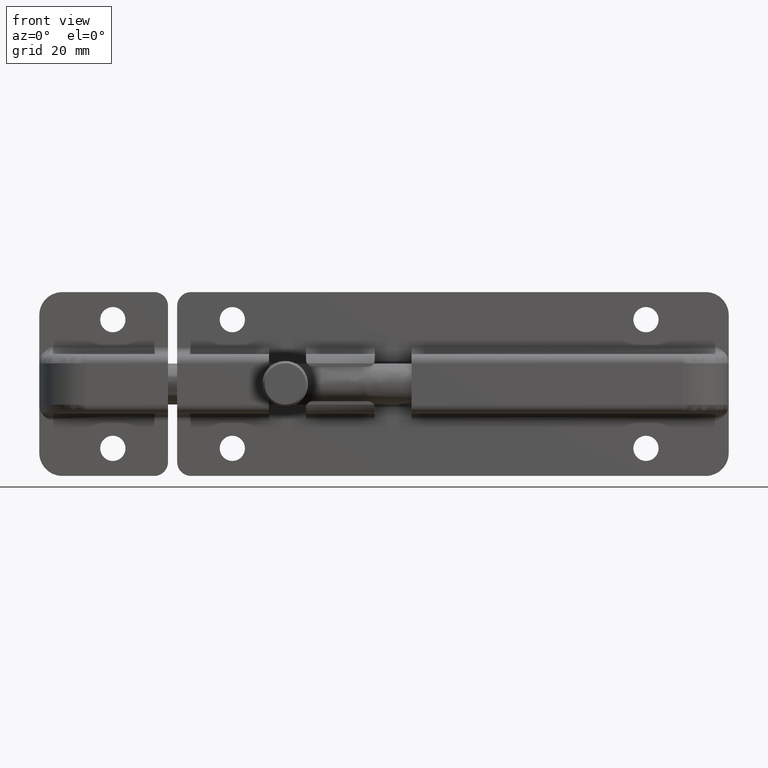
[diagram: clean part render]
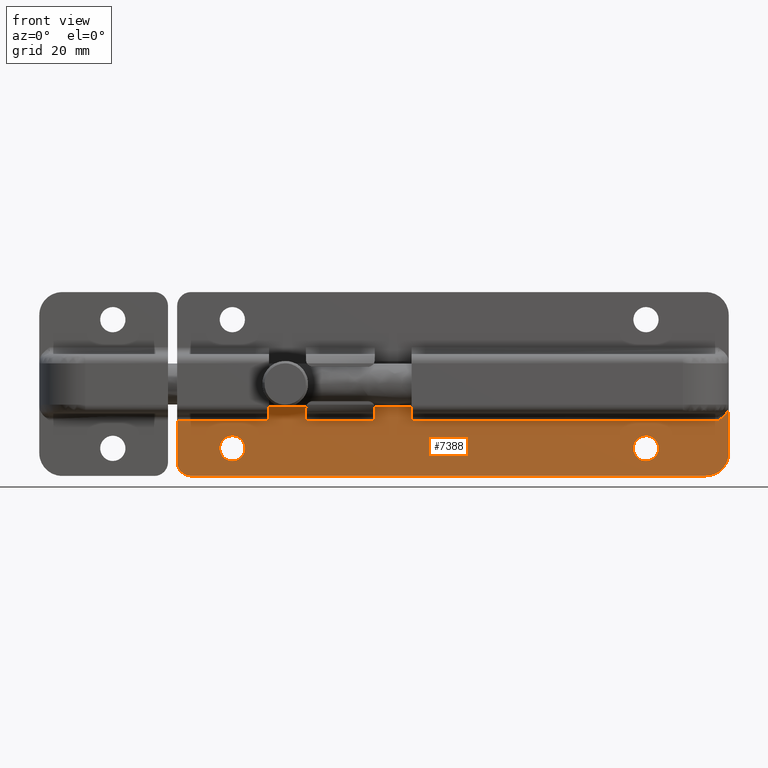
[diagram: same view with one face highlighted and labeled with its STEP entity id]
A machine part, front view. The second image highlights one B-rep face of the part: STEP entity #7388.
In plain terms, the highlighted face is a freeform B-spline surface patch.
Its self-contained STEP definition (entity closure, byte-faithful):
#4651=CARTESIAN_POINT('',(102.0,-1.499999999999834,-11.250000000000000));
#4652=VERTEX_POINT('',#4651);
#4653=CARTESIAN_POINT('',(99.271267912047250,-1.499999999999834,-13.658647993741001));
#4654=VERTEX_POINT('',#4653);
#4655=CARTESIAN_POINT('',(102.0,-1.499999999999834,-11.250000000000000));
#4656=CARTESIAN_POINT('',(99.572578850554137,-1.499999999999834,-11.249999999999998));
#4657=CARTESIAN_POINT('',(99.271267912047250,-1.499999999999834,-13.658647993741003));
#4665=(BOUNDED_CURVE()B_SPLINE_CURVE(2,(#4655,#4656,#4657),.UNSPECIFIED.,.F.,.U.)B_SPLINE_CURVE_WITH_KNOTS((3,3),(0.0,0.228526070962616),.UNSPECIFIED.)CURVE()GEOMETRIC_REPRESENTATION_ITEM()RATIONAL_B_SPLINE_CURVE((1.0,0.732265053971872,0.954005430145314))REPRESENTATION_ITEM(''));
#4666=EDGE_CURVE('',#4652,#4654,#4665,.T.);
#4707=CARTESIAN_POINT('',(104.749895288416990,-1.499999999999834,-14.023997973706400));
#4708=VERTEX_POINT('',#4707);
#4714=CARTESIAN_POINT('',(104.749895288416970,-1.499999999999834,-14.023997973706397));
#4715=CARTESIAN_POINT('',(104.749999999999990,-1.499999999999834,-14.011999215842865));
#4716=CARTESIAN_POINT('',(104.750000000000000,-1.499999999999834,-14.0));
#4717=CARTESIAN_POINT('',(104.750000000000010,-1.499999999999834,-11.249999999999998));
#4718=CARTESIAN_POINT('',(102.0,-1.499999999999834,-11.250000000000000));
#4726=(BOUNDED_CURVE()B_SPLINE_CURVE(2,(#4714,#4715,#4716,#4717,#4718),.UNSPECIFIED.,.F.,.U.)B_SPLINE_CURVE_WITH_KNOTS((3,2,3),(0.748460105525903,0.750000000000000,1.0),.UNSPECIFIED.)CURVE()GEOMETRIC_REPRESENTATION_ITEM()RATIONAL_B_SPLINE_CURVE((0.996414027778467,0.998195901403395,1.0,0.707106781186548,1.0))REPRESENTATION_ITEM(''));
#4727=EDGE_CURVE('',#4708,#4652,#4726,.T.);
#4754=CARTESIAN_POINT('',(102.0,-1.499999999999834,-16.750000000000000));
#4755=VERTEX_POINT('',#4754);
#4756=CARTESIAN_POINT('',(99.271267912047250,-1.499999999999834,-13.658647993740995));
#4757=CARTESIAN_POINT('',(99.249999999999986,-1.499999999999834,-13.828661448737103));
#4758=CARTESIAN_POINT('',(99.249999999999986,-1.499999999999834,-14.0));
#4759=CARTESIAN_POINT('',(99.249999999999986,-1.499999999999834,-16.750000000000000));
#4760=CARTESIAN_POINT('',(102.0,-1.499999999999834,-16.750000000000000));
#4768=(BOUNDED_CURVE()B_SPLINE_CURVE(2,(#4756,#4757,#4758,#4759,#4760),.UNSPECIFIED.,.F.,.U.)B_SPLINE_CURVE_WITH_KNOTS((3,2,3),(0.228526070962616,0.250000000000000,0.500000000000000),.UNSPECIFIED.)CURVE()GEOMETRIC_REPRESENTATION_ITEM()RATIONAL_B_SPLINE_CURVE((0.954005430145313,0.974841727214676,1.0,0.707106781186548,1.0))REPRESENTATION_ITEM(''));
#4769=EDGE_CURVE('',#4654,#4755,#4768,.T.);
#4771=CARTESIAN_POINT('',(102.0,-1.499999999999834,-16.750000000000000));
#4772=CARTESIAN_POINT('',(104.726105826983170,-1.499999999999834,-16.749999999999996));
#4773=CARTESIAN_POINT('',(104.749895288417040,-1.499999999999834,-14.023997973706399));
#4781=(BOUNDED_CURVE()B_SPLINE_CURVE(2,(#4771,#4772,#4773),.UNSPECIFIED.,.F.,.U.)B_SPLINE_CURVE_WITH_KNOTS((3,3),(0.500000000000000,0.748460105525903),.UNSPECIFIED.)CURVE()GEOMETRIC_REPRESENTATION_ITEM()RATIONAL_B_SPLINE_CURVE((1.0,0.708910879783153,0.996414027778466))REPRESENTATION_ITEM(''));
#4782=EDGE_CURVE('',#4755,#4708,#4781,.T.);
#4837=CARTESIAN_POINT('',(12.0,-1.499999999999834,-11.250000000000000));
#4838=VERTEX_POINT('',#4837);
#4839=CARTESIAN_POINT('',(9.271267912047254,-1.499999999999834,-13.658647993741001));
#4840=VERTEX_POINT('',#4839);
#4841=CARTESIAN_POINT('',(12.0,-1.499999999999834,-11.250000000000000));
#4842=CARTESIAN_POINT('',(9.572578850554153,-1.499999999999835,-11.249999999999998));
#4843=CARTESIAN_POINT('',(9.271267912047254,-1.499999999999834,-13.658647993740999));
#4851=(BOUNDED_CURVE()B_SPLINE_CURVE(2,(#4841,#4842,#4843),.UNSPECIFIED.,.F.,.U.)B_SPLINE_CURVE_WITH_KNOTS((3,3),(0.0,0.228526070962616),.UNSPECIFIED.)CURVE()GEOMETRIC_REPRESENTATION_ITEM()RATIONAL_B_SPLINE_CURVE((1.0,0.732265053971871,0.954005430145314))REPRESENTATION_ITEM(''));
#4852=EDGE_CURVE('',#4838,#4840,#4851,.T.);
#4893=CARTESIAN_POINT('',(14.749895288416990,-1.499999999999834,-14.023997973706400));
#4894=VERTEX_POINT('',#4893);
#4900=CARTESIAN_POINT('',(14.749895288416992,-1.499999999999834,-14.023997973706406));
#4901=CARTESIAN_POINT('',(14.750000000000004,-1.499999999999834,-14.011999215842863));
#4902=CARTESIAN_POINT('',(14.750000000000000,-1.499999999999834,-14.0));
#4903=CARTESIAN_POINT('',(14.750000000000005,-1.499999999999834,-11.249999999999998));
#4904=CARTESIAN_POINT('',(12.0,-1.499999999999834,-11.250000000000000));
#4912=(BOUNDED_CURVE()B_SPLINE_CURVE(2,(#4900,#4901,#4902,#4903,#4904),.UNSPECIFIED.,.F.,.U.)B_SPLINE_CURVE_WITH_KNOTS((3,2,3),(0.748460105525903,0.750000000000000,1.0),.UNSPECIFIED.)CURVE()GEOMETRIC_REPRESENTATION_ITEM()RATIONAL_B_SPLINE_CURVE((0.996414027778467,0.998195901403395,1.0,0.707106781186548,1.0))REPRESENTATION_ITEM(''));
#4913=EDGE_CURVE('',#4894,#4838,#4912,.T.);
#4940=CARTESIAN_POINT('',(12.0,-1.499999999999834,-16.750000000000000));
#4941=VERTEX_POINT('',#4940);
#4942=CARTESIAN_POINT('',(9.271267912047254,-1.499999999999834,-13.658647993741001));
#4943=CARTESIAN_POINT('',(9.250000000000002,-1.499999999999834,-13.828661448737112));
#4944=CARTESIAN_POINT('',(9.250000000000002,-1.499999999999834,-14.0));
#4945=CARTESIAN_POINT('',(9.250000000000002,-1.499999999999834,-16.750000000000000));
#4946=CARTESIAN_POINT('',(12.0,-1.499999999999834,-16.750000000000000));
#4954=(BOUNDED_CURVE()B_SPLINE_CURVE(2,(#4942,#4943,#4944,#4945,#4946),.UNSPECIFIED.,.F.,.U.)B_SPLINE_CURVE_WITH_KNOTS((3,2,3),(0.228526070962616,0.250000000000000,0.500000000000000),.UNSPECIFIED.)CURVE()GEOMETRIC_REPRESENTATION_ITEM()RATIONAL_B_SPLINE_CURVE((0.954005430145314,0.974841727214676,1.0,0.707106781186548,1.0))REPRESENTATION_ITEM(''));
#4955=EDGE_CURVE('',#4840,#4941,#4954,.T.);
#4957=CARTESIAN_POINT('',(12.0,-1.499999999999834,-16.750000000000000));
#4958=CARTESIAN_POINT('',(14.726105826983149,-1.499999999999834,-16.749999999999996));
#4959=CARTESIAN_POINT('',(14.749895288416997,-1.499999999999833,-14.023997973706399));
#4967=(BOUNDED_CURVE()B_SPLINE_CURVE(2,(#4957,#4958,#4959),.UNSPECIFIED.,.F.,.U.)B_SPLINE_CURVE_WITH_KNOTS((3,3),(0.500000000000000,0.748460105525903),.UNSPECIFIED.)CURVE()GEOMETRIC_REPRESENTATION_ITEM()RATIONAL_B_SPLINE_CURVE((1.0,0.708910879783153,0.996414027778466))REPRESENTATION_ITEM(''));
#4968=EDGE_CURVE('',#4941,#4894,#4967,.T.);
#5274=CARTESIAN_POINT('',(43.0,-1.499999999999946,-5.250000000000000));
#5275=VERTEX_POINT('',#5274);
#5281=CARTESIAN_POINT('',(42.979019945774887,-1.499999999999946,-5.0));
#5282=VERTEX_POINT('',#5281);
#5283=CARTESIAN_POINT('',(43.0,-1.499999999999946,-5.250000000000000));
#5284=CARTESIAN_POINT('',(43.0,-1.499999999999946,-5.124119674649424));
#5285=CARTESIAN_POINT('',(42.979019945774901,-1.499999999999946,-4.999999999999998));
#5293=(BOUNDED_CURVE()B_SPLINE_CURVE(2,(#5283,#5284,#5285),.UNSPECIFIED.,.F.,.U.)CURVE()GEOMETRIC_REPRESENTATION_ITEM()QUASI_UNIFORM_CURVE()RATIONAL_B_SPLINE_CURVE((1.0,0.996497189454960,1.0))REPRESENTATION_ITEM(''));
#5294=EDGE_CURVE('',#5275,#5282,#5293,.T.);
#5361=CARTESIAN_POINT('',(28.020980054225198,-1.499999999999946,-5.0));
#5362=VERTEX_POINT('',#5361);
#5370=CARTESIAN_POINT('',(28.0,-1.499999999999946,-5.250000000000000));
#5371=VERTEX_POINT('',#5370);
#5372=CARTESIAN_POINT('',(28.020980054225198,-1.499999999999946,-5.0));
#5373=CARTESIAN_POINT('',(27.999999999999996,-1.499999999999946,-5.124119674649414));
#5374=CARTESIAN_POINT('',(28.0,-1.499999999999946,-5.250000000000000));
#5382=(BOUNDED_CURVE()B_SPLINE_CURVE(2,(#5372,#5373,#5374),.UNSPECIFIED.,.F.,.U.)CURVE()GEOMETRIC_REPRESENTATION_ITEM()QUASI_UNIFORM_CURVE()RATIONAL_B_SPLINE_CURVE((1.0,0.996497189454960,1.0))REPRESENTATION_ITEM(''));
#5383=EDGE_CURVE('',#5362,#5371,#5382,.T.);
#5524=CARTESIAN_POINT('',(20.0,-1.500000000000000,-8.0));
#5525=VERTEX_POINT('',#5524);
#5539=CARTESIAN_POINT('',(20.0,-1.500000000000000,-5.0));
#5540=VERTEX_POINT('',#5539);
#5541=CARTESIAN_POINT('',(20.0,-1.500000000000000,-5.0));
#5542=CARTESIAN_POINT('',(20.0,-1.500000000000000,-8.0));
#5543=QUASI_UNIFORM_CURVE('',1,(#5541,#5542),.UNSPECIFIED.,.F.,.U.);
#5544=EDGE_CURVE('',#5540,#5525,#5543,.T.);
#5582=CARTESIAN_POINT('',(51.0,-1.500000000000000,-5.0));
#5583=VERTEX_POINT('',#5582);
#5589=CARTESIAN_POINT('',(51.0,-1.500000000000000,-8.0));
#5590=VERTEX_POINT('',#5589);
#5591=CARTESIAN_POINT('',(51.0,-1.500000000000000,-8.0));
#5592=CARTESIAN_POINT('',(51.0,-1.500000000000000,-5.0));
#5593=QUASI_UNIFORM_CURVE('',1,(#5591,#5592),.UNSPECIFIED.,.F.,.U.);
#5594=EDGE_CURVE('',#5590,#5583,#5593,.T.);
#5690=CARTESIAN_POINT('',(43.0,-1.500000000000000,-8.0));
#5691=VERTEX_POINT('',#5690);
#5692=CARTESIAN_POINT('',(43.0,-1.499999999999946,-5.250000000000000));
#5693=CARTESIAN_POINT('',(43.0,-1.500000000000000,-8.0));
#5694=QUASI_UNIFORM_CURVE('',1,(#5692,#5693),.UNSPECIFIED.,.F.,.U.);
#5695=EDGE_CURVE('',#5275,#5691,#5694,.T.);
#5764=CARTESIAN_POINT('',(28.0,-1.500000000000000,-8.0));
#5765=VERTEX_POINT('',#5764);
#5766=CARTESIAN_POINT('',(28.0,-1.500000000000000,-8.0));
#5767=CARTESIAN_POINT('',(28.0,-1.499999999999946,-5.250000000000000));
#5768=QUASI_UNIFORM_CURVE('',1,(#5766,#5767),.UNSPECIFIED.,.F.,.U.);
#5769=EDGE_CURVE('',#5765,#5371,#5768,.T.);
#6014=CARTESIAN_POINT('',(117.745966692414800,-1.499999999999886,-8.0));
#6015=VERTEX_POINT('',#6014);
#6045=CARTESIAN_POINT('',(120.0,-1.499999999999886,-4.837722339831610));
#6046=VERTEX_POINT('',#6045);
#6047=CARTESIAN_POINT('',(120.0,-1.499999999999886,-4.837722339831610));
#6048=CARTESIAN_POINT('',(120.0,-1.499999999999886,-5.008541799080298));
#6049=CARTESIAN_POINT('',(119.981653918791910,-1.499999999999886,-5.176119257054260));
#6050=CARTESIAN_POINT('',(119.929588147353500,-1.499999999999886,-5.423147718237371));
#6051=CARTESIAN_POINT('',(119.908105776820610,-1.499999999999885,-5.504761221743337));
#6052=CARTESIAN_POINT('',(119.857046269094100,-1.499999999999886,-5.666557773742325));
#6053=CARTESIAN_POINT('',(119.827381920327800,-1.499999999999886,-5.746828037129697));
#6054=CARTESIAN_POINT('',(119.728478293669500,-1.499999999999886,-5.980930562221776));
#6055=CARTESIAN_POINT('',(119.648916667679800,-1.499999999999886,-6.129721869518308));
#6056=CARTESIAN_POINT('',(119.511807711160700,-1.499999999999886,-6.343420433646037));
#6057=CARTESIAN_POINT('',(119.462925770425200,-1.499999999999886,-6.413329607554291));
#6058=CARTESIAN_POINT('',(119.360690576839900,-1.499999999999886,-6.548783733975963));
#6059=CARTESIAN_POINT('',(119.307460799767990,-1.499999999999886,-6.614220344695490));
#6060=CARTESIAN_POINT('',(119.142326133498200,-1.499999999999886,-6.804625244703221));
#6061=CARTESIAN_POINT('',(119.024955962554800,-1.499999999999886,-6.923666971608262));
#6062=CARTESIAN_POINT('',(118.780393492719400,-1.499999999999886,-7.151099290356870));
#6063=CARTESIAN_POINT('',(118.653183799632800,-1.499999999999886,-7.259471019901129));
#6064=CARTESIAN_POINT('',(118.394465768067210,-1.499999999999886,-7.471553019385928));
#6065=CARTESIAN_POINT('',(118.263001228910500,-1.499999999999886,-7.575310785398437));
#6066=CARTESIAN_POINT('',(118.067165969465290,-1.499999999999886,-7.732423901172274));
#6067=CARTESIAN_POINT('',(118.002113470120190,-1.499999999999886,-7.785039928370047));
#6068=CARTESIAN_POINT('',(117.905360065074210,-1.499999999999886,-7.864858973809287));
#6069=CARTESIAN_POINT('',(117.873245552532000,-1.499999999999886,-7.891613475970289));
#6070=CARTESIAN_POINT('',(117.809358149205390,-1.499999999999886,-7.945492935605378));
#6071=CARTESIAN_POINT('',(117.777769822775890,-1.499999999999886,-7.972485624675856));
#6072=CARTESIAN_POINT('',(117.745966692415000,-1.499999999999886,-8.0));
#6073=B_SPLINE_CURVE_WITH_KNOTS('',3,(#6047,#6048,#6049,#6050,#6051,#6052,#6053,#6054,#6055,#6056,#6057,#6058,#6059,#6060,#6061,#6062,#6063,#6064,#6065,#6066,#6067,#6068,#6069,#6070,#6071,#6072),.UNSPECIFIED.,.F.,.U.,(4,2,2,2,2,2,2,2,2,2,2,2,4),(0.0,0.124999999999993,0.187499999999991,0.249999999999988,0.374999999999984,0.437499999999982,0.499999999999980,0.624999999999982,0.749999999999985,0.874999999999989,0.937499999999990,0.968749999999995,1.0),.UNSPECIFIED.);
#6074=EDGE_CURVE('',#6046,#6015,#6073,.T.);
#6527=CARTESIAN_POINT('',(0.0,-1.499999999999886,-8.0));
#6528=VERTEX_POINT('',#6527);
#6529=CARTESIAN_POINT('',(20.0,-1.500000000000000,-8.0));
#6530=CARTESIAN_POINT('',(0.0,-1.499999999999886,-8.0));
#6531=QUASI_UNIFORM_CURVE('',1,(#6529,#6530),.UNSPECIFIED.,.F.,.U.);
#6532=EDGE_CURVE('',#5525,#6528,#6531,.T.);
#6765=CARTESIAN_POINT('',(20.0,-1.500000000000000,-5.0));
#6766=CARTESIAN_POINT('',(28.020980054225198,-1.499999999999946,-5.0));
#6767=QUASI_UNIFORM_CURVE('',1,(#6765,#6766),.UNSPECIFIED.,.F.,.U.);
#6768=EDGE_CURVE('',#5540,#5362,#6767,.T.);
#6775=CARTESIAN_POINT('',(42.979019945774887,-1.499999999999946,-5.0));
#6776=CARTESIAN_POINT('',(51.0,-1.500000000000000,-5.0));
#6777=QUASI_UNIFORM_CURVE('',1,(#6775,#6776),.UNSPECIFIED.,.F.,.U.);
#6778=EDGE_CURVE('',#5282,#5583,#6777,.T.);
#6869=CARTESIAN_POINT('',(115.0,-1.499999999999886,-20.0));
#6870=VERTEX_POINT('',#6869);
#6871=CARTESIAN_POINT('',(120.0,-1.499999999999886,-15.0));
#6872=VERTEX_POINT('',#6871);
#6873=CARTESIAN_POINT('',(115.0,-1.499999999999886,-20.0));
#6874=CARTESIAN_POINT('',(120.000000000000040,-1.499999999999886,-19.999999999999996));
#6875=CARTESIAN_POINT('',(120.0,-1.499999999999886,-15.0));
#6883=(BOUNDED_CURVE()B_SPLINE_CURVE(2,(#6873,#6874,#6875),.UNSPECIFIED.,.F.,.U.)CURVE()GEOMETRIC_REPRESENTATION_ITEM()QUASI_UNIFORM_CURVE()RATIONAL_B_SPLINE_CURVE((1.0,0.707106781186548,1.0))REPRESENTATION_ITEM(''));
#6884=EDGE_CURVE('',#6870,#6872,#6883,.T.);
#6930=CARTESIAN_POINT('',(0.0,-1.499999999999886,-17.0));
#6931=VERTEX_POINT('',#6930);
#6932=CARTESIAN_POINT('',(3.0,-1.499999999999886,-20.0));
#6933=VERTEX_POINT('',#6932);
#6934=CARTESIAN_POINT('',(0.0,-1.499999999999886,-17.0));
#6935=CARTESIAN_POINT('',(0.0,-1.499999999999886,-19.999999999999996));
#6936=CARTESIAN_POINT('',(3.0,-1.499999999999886,-20.0));
#6944=(BOUNDED_CURVE()B_SPLINE_CURVE(2,(#6934,#6935,#6936),.UNSPECIFIED.,.F.,.U.)CURVE()GEOMETRIC_REPRESENTATION_ITEM()QUASI_UNIFORM_CURVE()RATIONAL_B_SPLINE_CURVE((1.0,0.707106781186548,1.0))REPRESENTATION_ITEM(''));
#6945=EDGE_CURVE('',#6931,#6933,#6944,.T.);
#7193=CARTESIAN_POINT('',(120.0,-1.499999999999886,-4.837722339831610));
#7194=CARTESIAN_POINT('',(120.0,-1.499999999999886,-15.0));
#7195=QUASI_UNIFORM_CURVE('',1,(#7193,#7194),.UNSPECIFIED.,.F.,.U.);
#7196=EDGE_CURVE('',#6046,#6872,#7195,.T.);
#7219=CARTESIAN_POINT('',(115.0,-1.499999999999886,-20.0));
#7220=CARTESIAN_POINT('',(3.0,-1.499999999999886,-20.0));
#7221=QUASI_UNIFORM_CURVE('',1,(#7219,#7220),.UNSPECIFIED.,.F.,.U.);
#7222=EDGE_CURVE('',#6870,#6933,#7221,.T.);
#7335=CARTESIAN_POINT('',(0.0,-1.499999999999886,-8.0));
#7336=CARTESIAN_POINT('',(0.0,-1.499999999999886,-17.0));
#7337=QUASI_UNIFORM_CURVE('',1,(#7335,#7336),.UNSPECIFIED.,.F.,.U.);
#7338=EDGE_CURVE('',#6528,#6931,#7337,.T.);
#7344=CARTESIAN_POINT('',(-5.993999767416717,-1.499999999999886,-20.757355739737982));
#7345=CARTESIAN_POINT('',(-5.993999767416717,-1.499999999999886,-4.080366193409659));
#7346=CARTESIAN_POINT('',(125.994002986067500,-1.499999999999886,-20.757355739737982));
#7347=CARTESIAN_POINT('',(125.994002986067500,-1.499999999999886,-4.080366193409659));
#7348=B_SPLINE_SURFACE_WITH_KNOTS('',1,1,((#7344,#7346),(#7345,#7347)),.UNSPECIFIED.,.F.,.F.,.U.,(2,2),(2,2),(0.0,16.676989546328318),(0.0,131.988002753484300),.UNSPECIFIED.);
#7349=CARTESIAN_POINT('',(117.745966692414800,-1.499999999999886,-8.0));
#7350=CARTESIAN_POINT('',(51.0,-1.500000000000000,-8.0));
#7351=QUASI_UNIFORM_CURVE('',1,(#7349,#7350),.UNSPECIFIED.,.F.,.U.);
#7352=EDGE_CURVE('',#6015,#5590,#7351,.T.);
#7353=ORIENTED_EDGE('',*,*,#7352,.T.);
#7354=ORIENTED_EDGE('',*,*,#5594,.T.);
#7355=ORIENTED_EDGE('',*,*,#6778,.F.);
#7356=ORIENTED_EDGE('',*,*,#5294,.F.);
#7357=ORIENTED_EDGE('',*,*,#5695,.T.);
#7358=CARTESIAN_POINT('',(43.0,-1.500000000000000,-8.0));
#7359=CARTESIAN_POINT('',(28.0,-1.500000000000000,-8.0));
#7360=QUASI_UNIFORM_CURVE('',1,(#7358,#7359),.UNSPECIFIED.,.F.,.U.);
#7361=EDGE_CURVE('',#5691,#5765,#7360,.T.);
#7362=ORIENTED_EDGE('',*,*,#7361,.T.);
#7363=ORIENTED_EDGE('',*,*,#5769,.T.);
#7364=ORIENTED_EDGE('',*,*,#5383,.F.);
#7365=ORIENTED_EDGE('',*,*,#6768,.F.);
#7366=ORIENTED_EDGE('',*,*,#5544,.T.);
#7367=ORIENTED_EDGE('',*,*,#6532,.T.);
#7368=ORIENTED_EDGE('',*,*,#7338,.T.);
#7369=ORIENTED_EDGE('',*,*,#6945,.T.);
#7370=ORIENTED_EDGE('',*,*,#7222,.F.);
#7371=ORIENTED_EDGE('',*,*,#6884,.T.);
#7372=ORIENTED_EDGE('',*,*,#7196,.F.);
#7373=ORIENTED_EDGE('',*,*,#6074,.T.);
#7374=EDGE_LOOP('',(#7353,#7354,#7355,#7356,#7357,#7362,#7363,#7364,#7365,#7366,#7367,#7368,#7369,#7370,#7371,#7372,#7373));
#7375=FACE_OUTER_BOUND('',#7374,.T.);
#7376=ORIENTED_EDGE('',*,*,#4968,.F.);
#7377=ORIENTED_EDGE('',*,*,#4955,.F.);
#7378=ORIENTED_EDGE('',*,*,#4852,.F.);
#7379=ORIENTED_EDGE('',*,*,#4913,.F.);
#7380=EDGE_LOOP('',(#7376,#7377,#7378,#7379));
#7381=FACE_BOUND('',#7380,.T.);
#7382=ORIENTED_EDGE('',*,*,#4782,.F.);
#7383=ORIENTED_EDGE('',*,*,#4769,.F.);
#7384=ORIENTED_EDGE('',*,*,#4666,.F.);
#7385=ORIENTED_EDGE('',*,*,#4727,.F.);
#7386=EDGE_LOOP('',(#7382,#7383,#7384,#7385));
#7387=FACE_BOUND('',#7386,.T.);
#7388=ADVANCED_FACE('',(#7375,#7381,#7387),#7348,.F.);